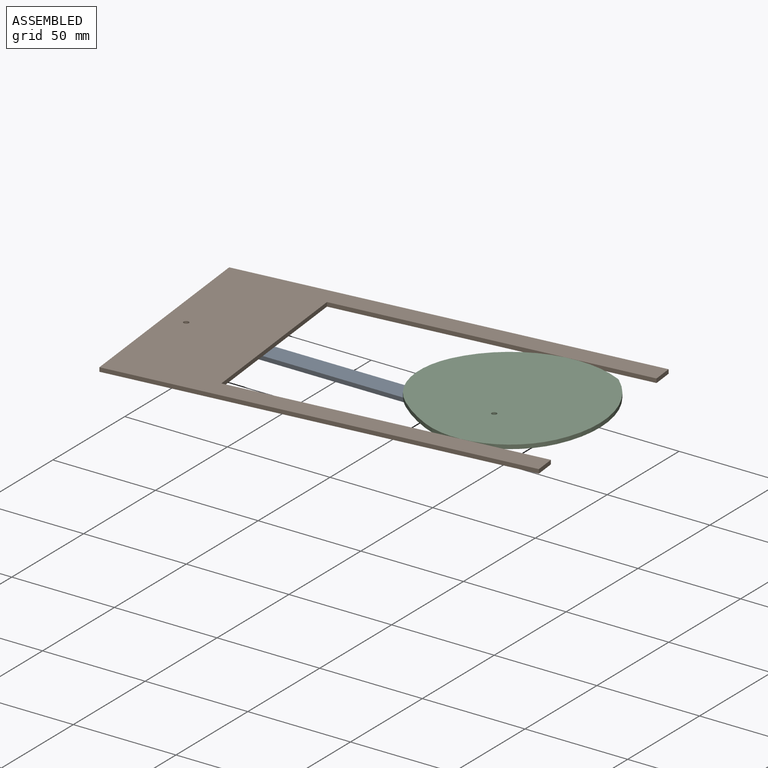
[diagram: assembled view]
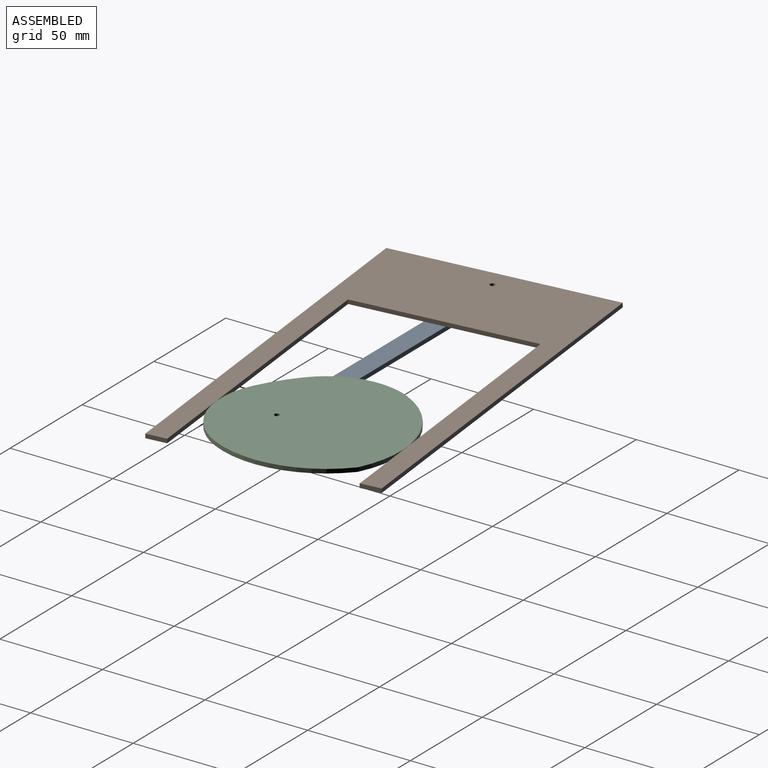
[diagram: assembled view, second angle]
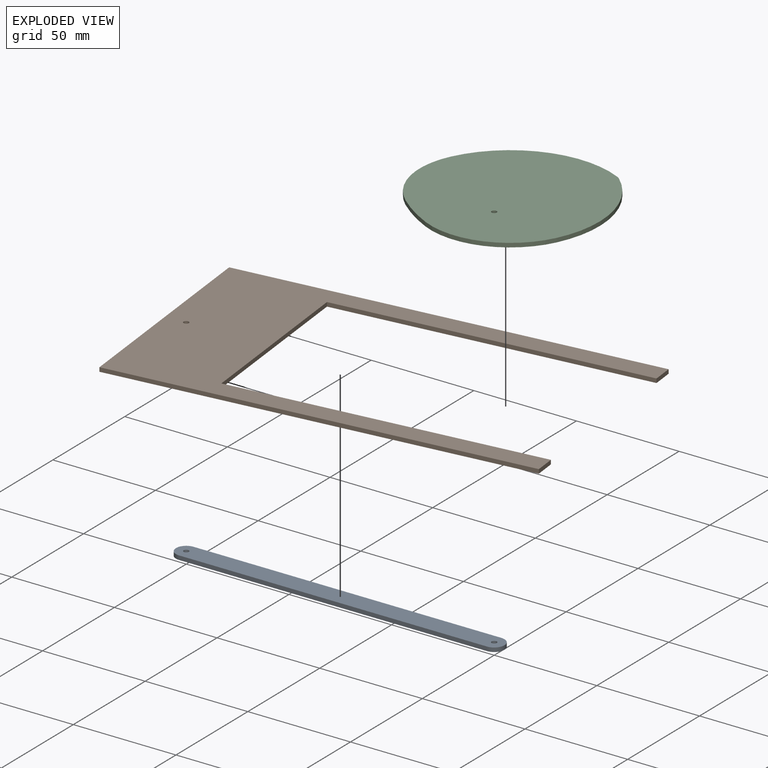
[diagram: exploded view]
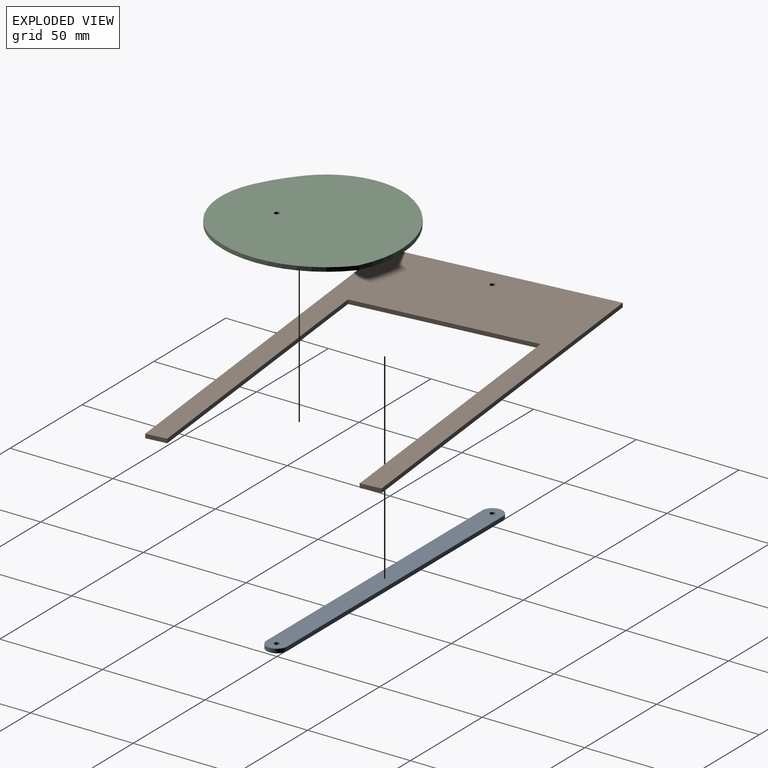
[diagram: exploded view, second angle]
ASSEMBLY  parts=3 mates=2
PART A: 8 faces, bbox 160x10x2 mm
  f0: cylinder r=5mm len=10mm, axis (0,0,1), area 31.4mm2, adj f1,f5,f6,f7
  f1: plane 150x2mm, normal (0,-1,0), area 300mm2, adj f0,f2,f6,f7
  f2: cylinder r=5mm len=10mm, axis (0,0,1), area 31.4mm2, adj f1,f5,f6,f7
  f3: cylinder r=1.25mm len=2.5mm, axis (0,0,1), area 15.7mm2, adj f6,f7
  f4: cylinder r=1.25mm len=2.5mm, axis (0,0,1), area 15.7mm2, adj f6,f7
  f5: plane 150x2mm, normal (0,1,0), area 300mm2, adj f0,f2,f6,f7
  f6: plane 160x10mm, normal (0,0,-1), area 1568.7mm2, adj f0,f1,f2,f3,f4,f5
  f7: plane 160x10mm, normal (0,0,1), area 1568.7mm2, adj f0,f1,f2,f3,f4,f5
PART B: 11 faces, bbox 200x107.6x2 mm
  f0: plane 200x2mm, normal (0,1,0), area 400mm2, adj f1,f8,f9,f10
  f1: plane 107.61x2mm, normal (-1,0,0), area 215.2mm2, adj f0,f2,f9,f10
  f2: plane 200x2mm, normal (0,-1,0), area 400mm2, adj f1,f3,f9,f10
  f3: plane 10x2mm, normal (1,0,0), area 20mm2, adj f2,f4,f9,f10
  f4: plane 150x2mm, normal (0,1,0), area 300mm2, adj f3,f5,f9,f10
  f5: plane 87.61x2mm, normal (1,0,0), area 175.2mm2, adj f4,f6,f9,f10
  f6: plane 150x2mm, normal (0,-1,0), area 300mm2, adj f5,f8,f9,f10
  f7: cylinder r=1.25mm len=2.5mm, axis (0,0,-1), area 15.7mm2, adj f9,f10
  f8: plane 10x2mm, normal (1,0,0), area 20mm2, adj f0,f6,f9,f10
  f9: plane 200x107.61mm, normal (0,0,1), area 8375.4mm2, adj f0,f1,f2,f3,f4,f5,f6,f7
  f10: plane 200x107.61mm, normal (0,0,-1), area 8375.4mm2, adj f0,f1,f2,f3,f4,f5,f6,f7
PART C: 9 faces, bbox 87.6x87.6x2 mm
  f0: cylinder r=37mm len=35.7mm, axis (0,0,-1), area 96.5mm2, adj f1,f5,f7,f8
  f1: cylinder r=82.61mm len=21.74mm, axis (0,0,-1), area 44mm2, adj f0,f2,f7,f8
  f2: cylinder r=38.61mm len=38.61mm, axis (0,0,-1), area 121.3mm2, adj f1,f3,f7,f8
  f3: cylinder r=50.61mm len=48.82mm, axis (0,0,-1), area 132mm2, adj f2,f4,f7,f8
  f4: cylinder r=5mm len=2mm, axis (0,0,-1), area 2.7mm2, adj f3,f5,f7,f8
  f5: cylinder r=49mm len=49mm, axis (0,0,-1), area 153.9mm2, adj f0,f4,f7,f8
  f6: cylinder r=1.25mm len=2.5mm, axis (0,0,-1), area 15.7mm2, adj f7,f8
  f7: plane 87.61x87.61mm, normal (0,0,1), area 5998.7mm2, adj f0,f1,f2,f3,f4,f5,f6
  f8: plane 87.61x87.61mm, normal (0,0,-1), area 5998.7mm2, adj f0,f1,f2,f3,f4,f5,f6
PLACE A t=(258.33,-123.46,0)mm fixed
PLACE B rot(axis=(0,0,1),6.2deg) t=(304.57,28.11,0)mm
PLACE C rot(axis=(0,0,1),63.9deg) t=(149.92,11.18,0)mm
MATE revolute A.f0 <-> B.f7  axis (0,0,1) through (0,0,0)mm
MATE revolute A.f2 <-> C.f6  axis (0,0,1) through (150,0,0)mm
